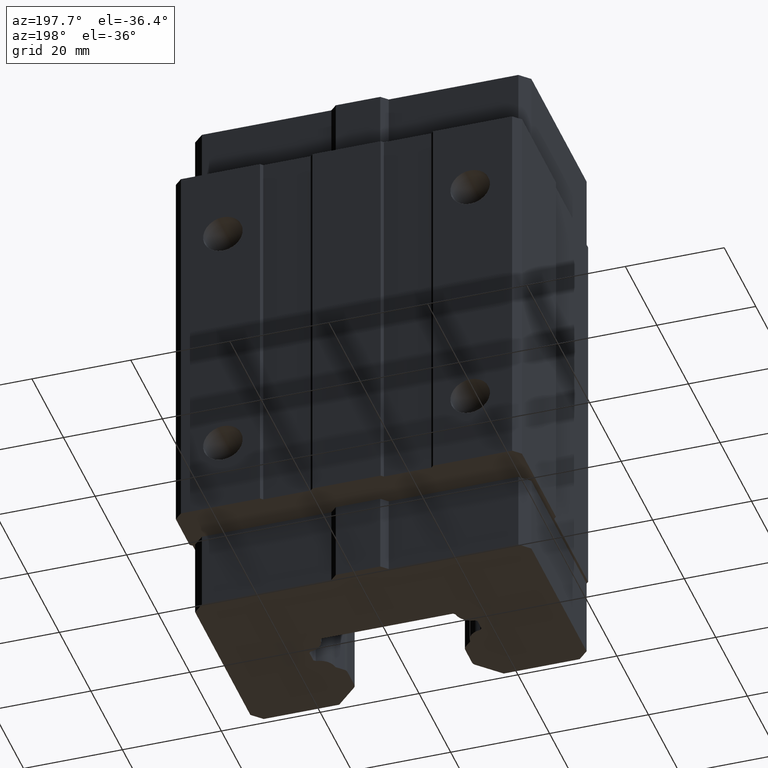
[diagram: clean part render]
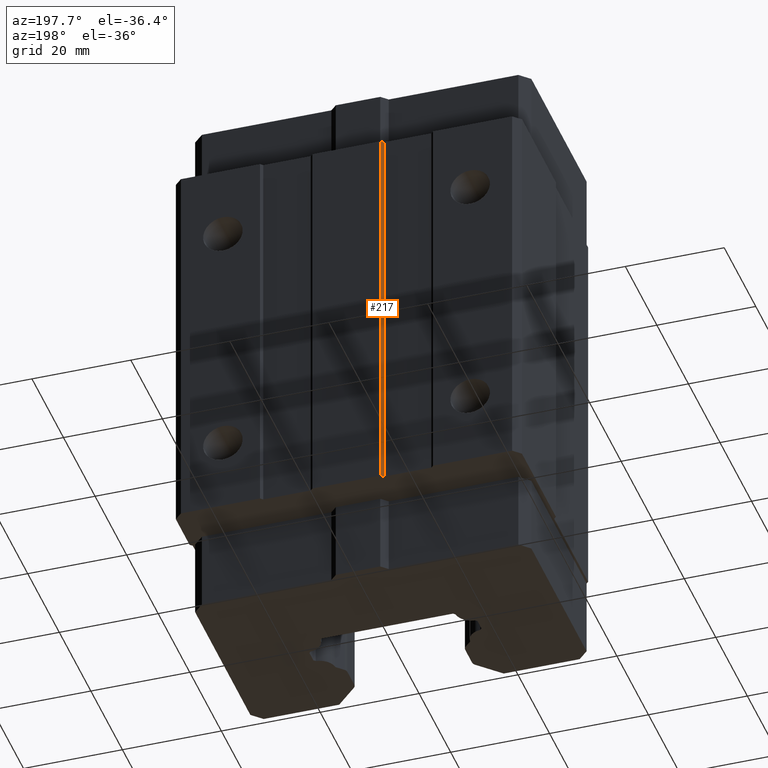
[diagram: same view with one face highlighted and labeled with its STEP entity id]
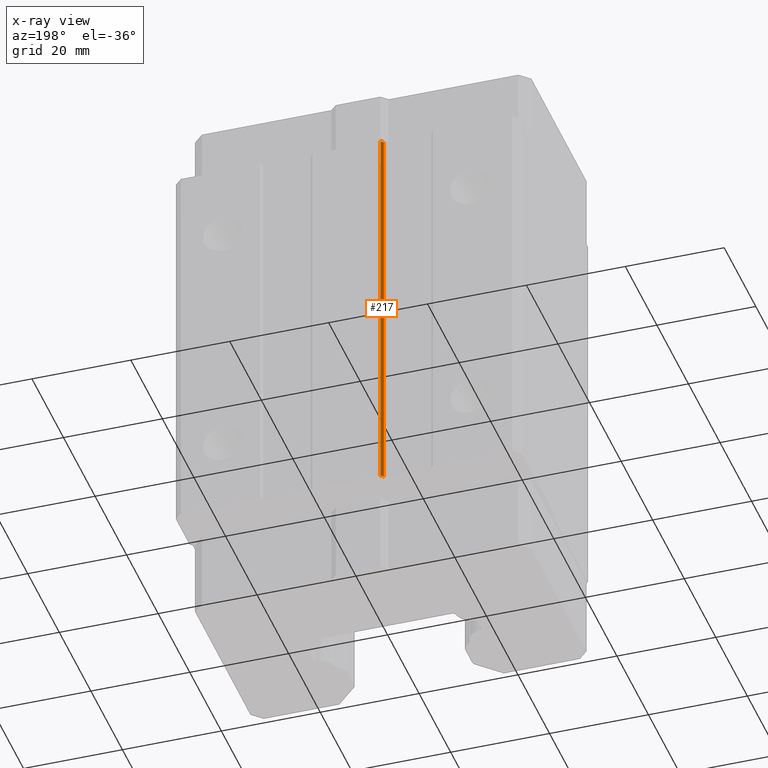
[diagram: x-ray of the same camera — body ghosted, the highlighted face saturated]
A machine part, auxiliary view. The second image highlights one B-rep face of the part: STEP entity #217.
The next image is the same camera in x-ray: the body ghosted, the highlighted face saturated — about 0% of this face is hidden behind the body in this view.
In plain terms, the highlighted planar face has unit normal (-0.7071, 0.7071, 0).
Its self-contained STEP definition (entity closure, byte-faithful):
#119 = ORIENTED_EDGE ( 'NONE', *, *, #120, .T. ) ;
#120 = EDGE_CURVE ( 'NONE', #199, #121, #5678, .T. ) ;
#121 = VERTEX_POINT ( 'NONE', #5674 ) ;
#122 = ORIENTED_EDGE ( 'NONE', *, *, #123, .F. ) ;
#123 = EDGE_CURVE ( 'NONE', #223, #121, #5673, .T. ) ;
#199 = VERTEX_POINT ( 'NONE', #5799 ) ;
#200 = VERTEX_POINT ( 'NONE', #5798 ) ;
#217 = ADVANCED_FACE ( 'NONE', ( #5835 ), #5834, .T. ) ;
#218 = EDGE_LOOP ( 'NONE', ( #219, #119, #122, #224 ) ) ;
#219 = ORIENTED_EDGE ( 'NONE', *, *, #220, .F. ) ;
#220 = EDGE_CURVE ( 'NONE', #199, #200, #5829, .T. ) ;
#223 = VERTEX_POINT ( 'NONE', #5825 ) ;
#224 = ORIENTED_EDGE ( 'NONE', *, *, #225, .T. ) ;
#225 = EDGE_CURVE ( 'NONE', #223, #200, #5824, .T. ) ;
#5670 = DIRECTION ( 'NONE',  ( 0.0000000000000000000, 0.0000000000000000000, -1.000000000000000000 ) ) ;
#5671 = VECTOR ( 'NONE', #5670, 1000.000000000000000 ) ;
#5672 = CARTESIAN_POINT ( 'NONE',  ( -7.400000001450000500, 25.50000000145000100, -40.00000000000000000 ) ) ;
#5673 = LINE ( 'NONE', #5672, #5671 ) ;
#5674 = CARTESIAN_POINT ( 'NONE',  ( -7.400000001449982700, 25.50000000144998300, -40.00000000000000000 ) ) ;
#5675 = DIRECTION ( 'NONE',  ( -0.7071067811864976100, -0.7071067811865975300, 0.0000000000000000000 ) ) ;
#5676 = VECTOR ( 'NONE', #5675, 1000.000000000000100 ) ;
#5677 = CARTESIAN_POINT ( 'NONE',  ( -6.900000002899999700, 26.00000000000000400, -40.00000000000000000 ) ) ;
#5678 = LINE ( 'NONE', #5677, #5676 ) ;
#5798 = CARTESIAN_POINT ( 'NONE',  ( -6.900000002899999700, 26.00000000000000400, 40.00000000000000000 ) ) ;
#5799 = CARTESIAN_POINT ( 'NONE',  ( -6.900000002899999700, 26.00000000000000400, -40.00000000000000000 ) ) ;
#5821 = DIRECTION ( 'NONE',  ( 0.7071067811864976100, 0.7071067811865975300, 0.0000000000000000000 ) ) ;
#5822 = VECTOR ( 'NONE', #5821, 1000.000000000000100 ) ;
#5823 = CARTESIAN_POINT ( 'NONE',  ( -6.900000002899999700, 26.00000000000000400, 40.00000000000000000 ) ) ;
#5824 = LINE ( 'NONE', #5823, #5822 ) ;
#5825 = CARTESIAN_POINT ( 'NONE',  ( -7.400000001449982700, 25.50000000144998300, 40.00000000000000000 ) ) ;
#5826 = DIRECTION ( 'NONE',  ( 0.0000000000000000000, 0.0000000000000000000, 1.000000000000000000 ) ) ;
#5827 = VECTOR ( 'NONE', #5826, 1000.000000000000000 ) ;
#5828 = CARTESIAN_POINT ( 'NONE',  ( -6.900000002899999700, 26.00000000000000400, -40.00000000000000000 ) ) ;
#5829 = LINE ( 'NONE', #5828, #5827 ) ;
#5830 = DIRECTION ( 'NONE',  ( -0.7071067811864976100, -0.7071067811865975300, 0.0000000000000000000 ) ) ;
#5831 = DIRECTION ( 'NONE',  ( -0.7071067811865975300, 0.7071067811864976100, 0.0000000000000000000 ) ) ;
#5832 = CARTESIAN_POINT ( 'NONE',  ( -6.900000002899999700, 26.00000000000000400, -40.00000000000000000 ) ) ;
#5833 = AXIS2_PLACEMENT_3D ( 'NONE', #5832, #5831, #5830 ) ;
#5834 = PLANE ( 'NONE',  #5833 ) ;
#5835 = FACE_OUTER_BOUND ( 'NONE', #218, .T. ) ;